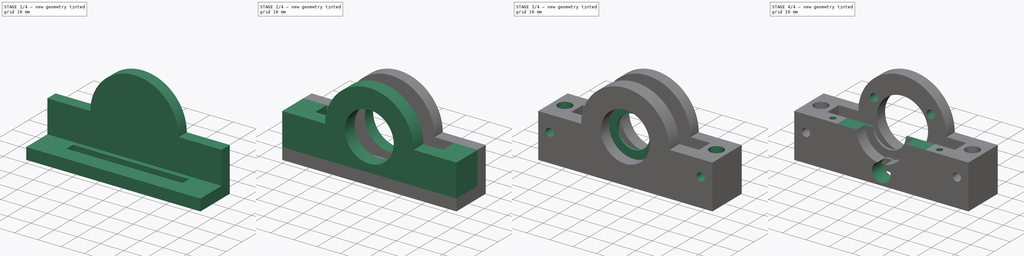
[diagram: build sequence overview — one tinted view per stage of 4, left to right]
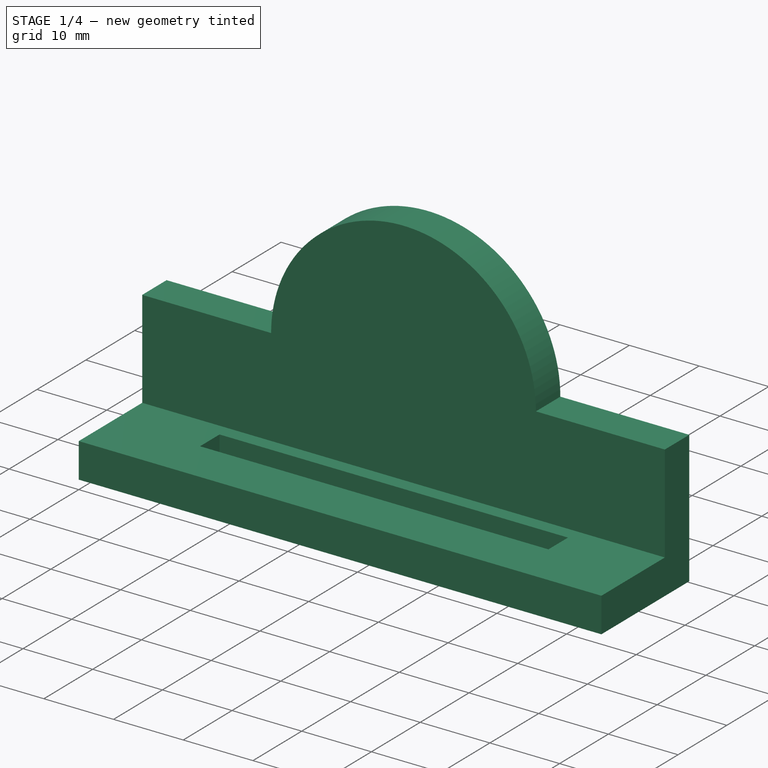
[diagram: stage 1 of 4 — iso view after this stage's code; geometry added in this stage tinted green]
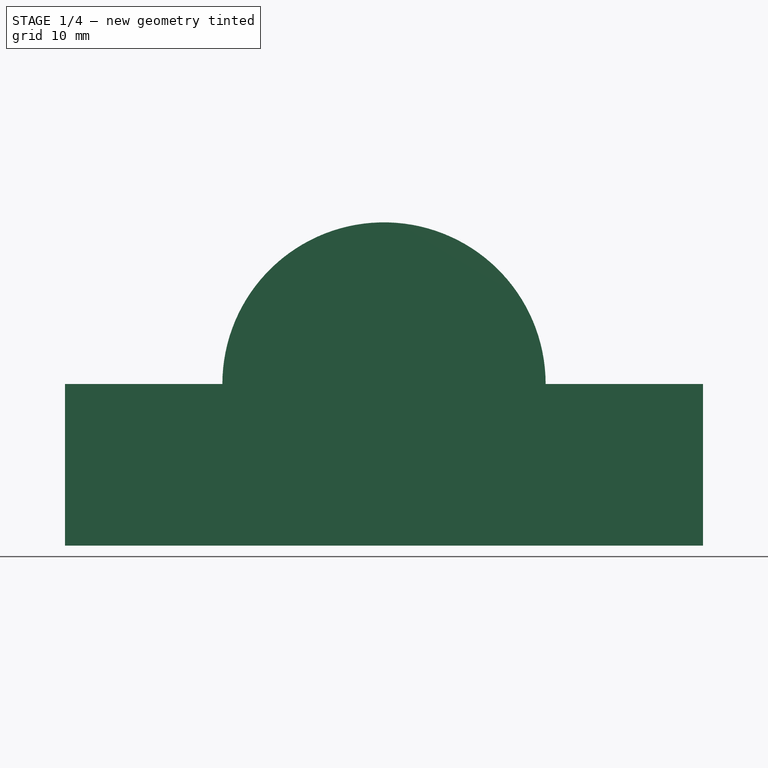
[diagram: stage 1 of 4 — front view after this stage's code; geometry added in this stage tinted green]
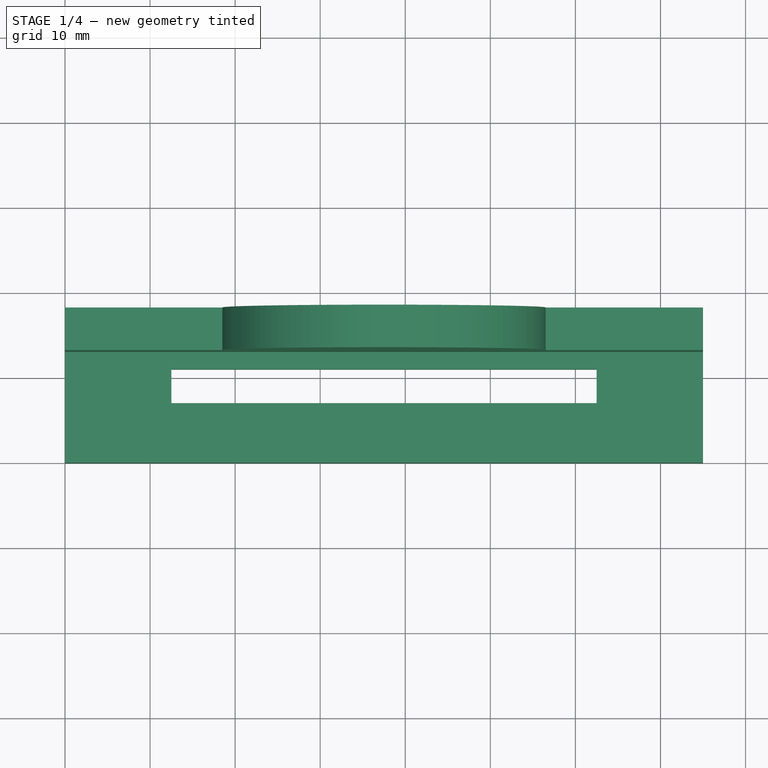
[diagram: stage 1 of 4 — top view after this stage's code; geometry added in this stage tinted green]
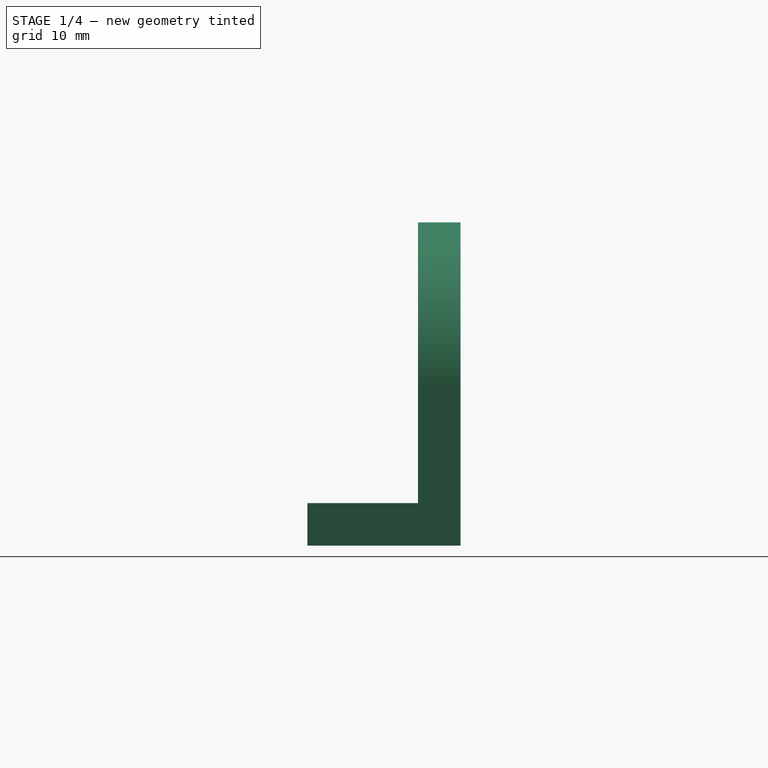
[diagram: stage 1 of 4 — right view after this stage's code; geometry added in this stage tinted green]
FCSTD DOCUMENT  (FreeCAD 0.17RUnknown)
Label: lpd3806-600bm-g5-24c_support_mobile
License: All rights reserved
LicenseURL: http://en.wikipedia.org/wiki/All_rights_reserved
objects: Sketcher::SketchObject×14, PartDesign::Pocket×8, PartDesign::Pad×5, PartDesign::Hole×1, PartDesign::Body×1
note: 43 computed .brp shape members not serialized (recipe doc carries the construction recipe); baked Part::Feature solids carry a one-line shape summary decoded from their .brp

FEATURE [Sketcher::SketchObject] Sketch
  MapMode = 5
  Support = -> [XY_Plane]
  sketch-geometry (4):
    g0: LineSegment StartX=0 StartY=0 StartZ=0 EndX=75 EndY=0 EndZ=0
    g1: LineSegment StartX=75 StartY=0 StartZ=0 EndX=75 EndY=18 EndZ=0
    g2: LineSegment StartX=75 StartY=18 StartZ=0 EndX=0 EndY=18 EndZ=0
    g3: LineSegment StartX=0 StartY=18 StartZ=0 EndX=0 EndY=0 EndZ=0
  constraints (11):
    c: Coincident(g0,g1)
    c: Coincident(g1,g2)
    c: Coincident(g2,g3)
    c: Coincident(g3,g0)
    c: Horizontal(g0)
    c: Horizontal(g2)
    c: Vertical(g1)
    c: Vertical(g3)
    c: Coincident(g0,g-1)
    c: DistanceX(g2,g2) = 75
    c: DistanceY(g3,g3) = 18
FEATURE [PartDesign::Pad] Pad
  Length = 5
  Length2 = 100
  Profile = -> Sketch
  Type = 0
FEATURE [Sketcher::SketchObject] Sketch001
  ExternalGeometry = -> [Pad]
  MapMode = 5
  Placement = pos=(0,0,5) rot=(0,0,1;0rad)
  Support = -> [Pad]
  sketch-geometry (6):
    g0: LineSegment StartX=12.5 StartY=11 StartZ=0 EndX=62.5 EndY=11 EndZ=0
    g1: LineSegment StartX=62.5 StartY=11 StartZ=0 EndX=62.5 EndY=7 EndZ=0
    g2: LineSegment StartX=62.5 StartY=7 StartZ=0 EndX=12.5 EndY=7 EndZ=0
    g3: LineSegment StartX=12.5 StartY=7 StartZ=0 EndX=12.5 EndY=11 EndZ=0
    g4: LineSegment [constr] StartX=12.5 StartY=7 StartZ=0 EndX=0 EndY=0 EndZ=0
    g5: LineSegment [constr] StartX=62.5 StartY=7 StartZ=0 EndX=75 EndY=0 EndZ=0
  constraints (16):
    c: Coincident(g0,g1)
    c: Coincident(g1,g2)
    c: Coincident(g2,g3)
    c: Coincident(g3,g0)
    c: Horizontal(g0)
    c: Horizontal(g2)
    c: Vertical(g1)
    c: Vertical(g3)
    c: DistanceY(g3,g3) = 4
    c: DistanceY(g-1,g2) = 7
    c: DistanceX(g0,g0) = 50
    c: Coincident(g4,g2)
    c: Coincident(g4,g-1)
    c: Coincident(g5,g1)
    c: Coincident(g5,g-3)
    c: Equal(g5,g4)
FEATURE [PartDesign::Pocket] Pocket
  BaseFeature = -> Pad
  Length = 5
  Length2 = 100
  Profile = -> Sketch001
  Type = 1
FEATURE [Sketcher::SketchObject] Sketch002
  ExternalGeometry = -> [Pocket]
  MapMode = 5
  Placement = pos=(0,0,5) rot=(0,0,1;0rad)
  Support = -> [Pocket]
  sketch-geometry (4):
    g0: LineSegment StartX=0 StartY=18 StartZ=0 EndX=75 EndY=18 EndZ=0
    g1: LineSegment StartX=75 StartY=18 StartZ=0 EndX=75 EndY=13 EndZ=0
    g2: LineSegment StartX=75 StartY=13 StartZ=0 EndX=0 EndY=13 EndZ=0
    g3: LineSegment StartX=0 StartY=13 StartZ=0 EndX=0 EndY=18 EndZ=0
  constraints (11):
    c: Coincident(g0,g1)
    c: Coincident(g1,g2)
    c: Coincident(g2,g3)
    c: Coincident(g3,g0)
    c: Horizontal(g0)
    c: Horizontal(g2)
    c: Vertical(g1)
    c: Vertical(g3)
    c: Coincident(g0,g-3)
    c: Coincident(g0,g-3)
    c: DistanceY(g3,g3) = 5
FEATURE [PartDesign::Pad] Pad001
  BaseFeature = -> Pocket
  Length = 38
  Length2 = 100
  Profile = -> Sketch002
  Type = 0
FEATURE [Sketcher::SketchObject] Sketch003
  ExternalGeometry = -> [Pad001]
  MapMode = 5
  Placement = pos=(0,13,0) rot=(1,0,0;1.5708rad)
  Support = -> [Pad001]
  sketch-geometry (8):
    g0: ArcOfCircle CenterX=37.5 CenterY=19 CenterZ=0 NormalX=0 NormalY=0 NormalZ=1 AngleXU=0 Radius=19 StartAngle=0 EndAngle=3.14159
    g1: LineSegment StartX=18.5 StartY=19 StartZ=0 EndX=-1.5 EndY=19 EndZ=0
    g2: LineSegment StartX=76.5 StartY=19 StartZ=0 EndX=56.5 EndY=19 EndZ=0
    g3: LineSegment StartX=-1.5 StartY=49 StartZ=0 EndX=76.5 EndY=49 EndZ=0
    g4: LineSegment StartX=76.5 StartY=49 StartZ=0 EndX=76.5 EndY=19 EndZ=0
    g5: LineSegment StartX=-1.5 StartY=19 StartZ=0 EndX=-1.5 EndY=49 EndZ=0
    g6: LineSegment [constr] StartX=-1.5 StartY=19 StartZ=0 EndX=0 EndY=5 EndZ=0
    g7: LineSegment [constr] StartX=75 StartY=5 StartZ=0 EndX=76.5 EndY=19 EndZ=0
  constraints (23):
    c: Radius(g0) = 19
    c: DistanceY(g0,g0) = 0
    c: Coincident(g0,g1)
    c: Coincident(g1,g5)
    c: Coincident(g5,g3)
    c: Horizontal(g1)
    c: Vertical(g5)
    c: Coincident(g3,g4)
    c: Coincident(g2,g4)
    c: Equal(g1,g2)
    c: Horizontal(g2)
    c: Vertical(g4)
    c: Horizontal(g3)
    c: Coincident(g0,g2)
    c: Coincident(g6,g1)
    c: Coincident(g6,g-5)
    c: Coincident(g7,g2)
    c: Equal(g7,g6)
    c: Coincident(g7,g-4)
    c: DistanceY(g0,g0) = 0
    c: DistanceY(g4,g4) = 30
    c: DistanceY(g-1,g0) = 19
    c: DistanceX(g1,g1) = 20
FEATURE [PartDesign::Pocket] Pocket001
  BaseFeature = -> Pad001
  Length = 5
  Length2 = 100
  Profile = -> Sketch003
  Type = 0
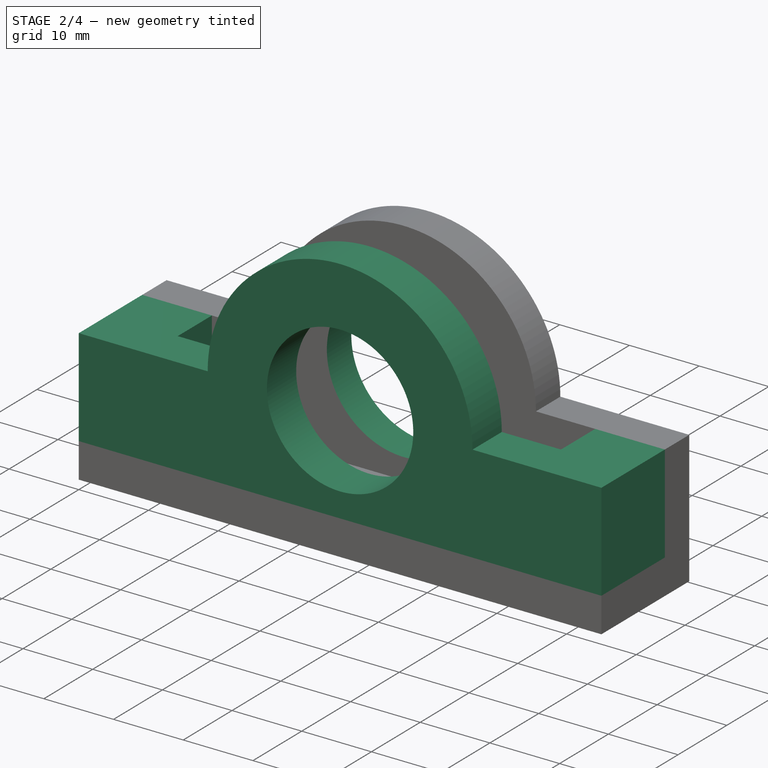
[diagram: stage 2 of 4 — iso view after this stage's code; geometry added in this stage tinted green]
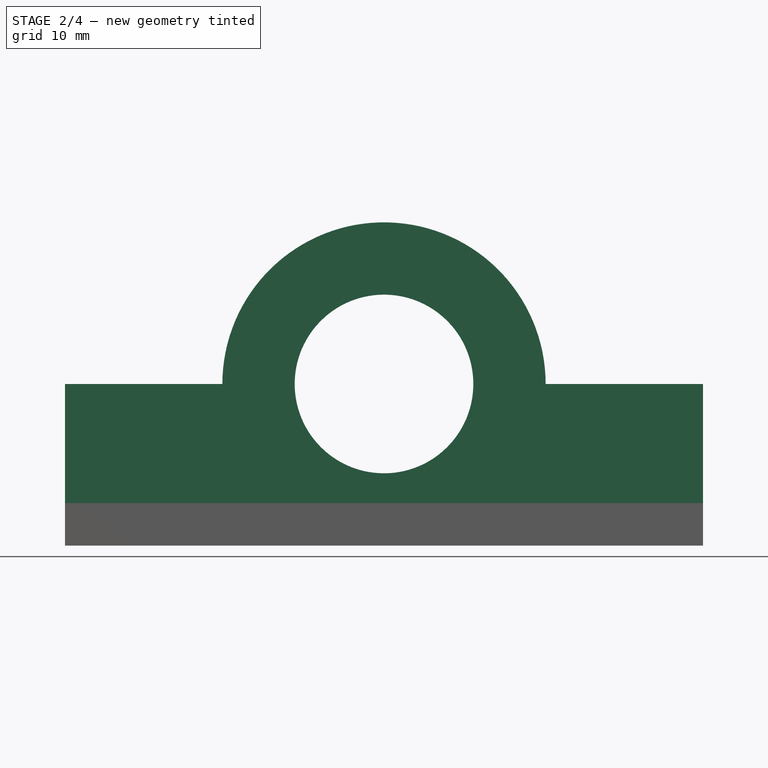
[diagram: stage 2 of 4 — front view after this stage's code; geometry added in this stage tinted green]
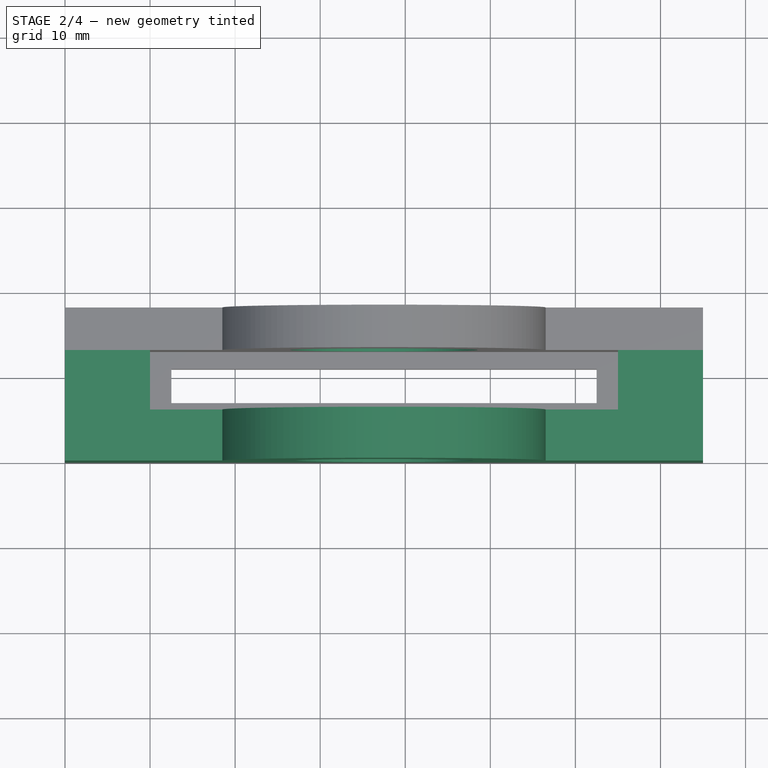
[diagram: stage 2 of 4 — top view after this stage's code; geometry added in this stage tinted green]
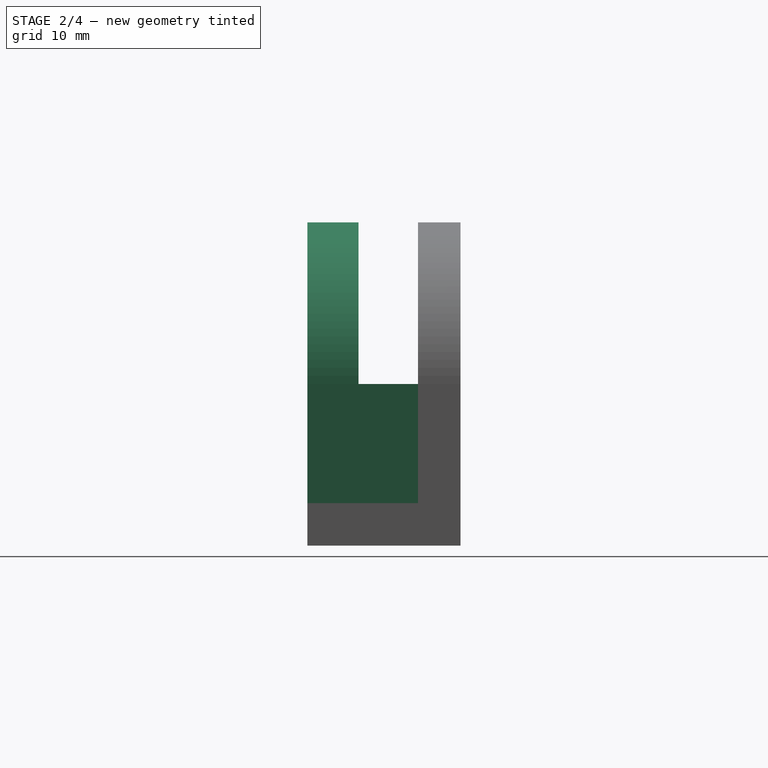
[diagram: stage 2 of 4 — right view after this stage's code; geometry added in this stage tinted green]
FEATURE [Sketcher::SketchObject] Sketch004
  ExternalGeometry = -> [Pocket001]
  MapMode = 3
  Placement = pos=(0,13,0) rot=(1,0,0;1.5708rad)
  sketch-geometry (1):
    g0: Circle CenterX=37.5 CenterY=19 CenterZ=0 NormalX=0 NormalY=0 NormalZ=1 AngleXU=0 Radius=11
  constraints (2):
    c: Radius(g0) = 11
    c: Coincident(g0,g-4)
FEATURE [PartDesign::Pocket] Pocket002
  BaseFeature = -> Pocket001
  Length = 5
  Length2 = 100
  Profile = -> Sketch004
  Type = 1
FEATURE [Sketcher::SketchObject] Sketch005
  ExternalGeometry = -> [Pocket002]
  MapMode = 5
  Placement = pos=(0,0,0) rot=(1,0,0;1.5708rad)
  Support = -> [Pocket002]
  sketch-geometry (7):
    g0: LineSegment StartX=56.5 StartY=19 StartZ=0 EndX=75 EndY=19 EndZ=0
    g1: LineSegment StartX=75 StartY=19 StartZ=0 EndX=75 EndY=0 EndZ=0
    g2: LineSegment StartX=75 StartY=0 StartZ=0 EndX=0 EndY=0 EndZ=0
    g3: LineSegment StartX=0 StartY=0 StartZ=0 EndX=0 EndY=19 EndZ=0
    g4: LineSegment StartX=0 StartY=19 StartZ=0 EndX=18.5 EndY=19 EndZ=0
    g5: ArcOfCircle CenterX=37.5 CenterY=19 CenterZ=0 NormalX=0 NormalY=0 NormalZ=1 AngleXU=0 Radius=19 StartAngle=0 EndAngle=3.14159
    g6: Circle CenterX=37.5 CenterY=19 CenterZ=0 NormalX=0 NormalY=0 NormalZ=1 AngleXU=0 Radius=10.5
  constraints (17):
    c: Coincident(g0,g-5)
    c: Horizontal(g0)
    c: Coincident(g0,g1)
    c: Coincident(g1,g-3)
    c: Coincident(g1,g2)
    c: Coincident(g2,g-1)
    c: Coincident(g2,g3)
    c: Coincident(g3,g-4)
    c: Coincident(g3,g4)
    c: Horizontal(g4)
    c: Coincident(g5,g4)
    c: Coincident(g5,g0)
    c: Radius(g5) = 19
    c: DistanceY(g0,g5) = 0
    c: Equal(g4,g0)
    c: Coincident(g6,g5)
    c: Radius(g6) = 10.5
FEATURE [PartDesign::Pad] Pad002
  BaseFeature = -> Pocket002
  Length = 6
  Length2 = 100
  Profile = -> Sketch005
  Reversed = true
  Type = 0
FEATURE [Sketcher::SketchObject] Sketch006
  ExternalGeometry = -> [Pad002]
  MapMode = 5
  Placement = pos=(0,0,5) rot=(0,0,1;0rad)
  Support = -> [Pad002]
  sketch-geometry (8):
    g0: LineSegment StartX=0 StartY=0 StartZ=0 EndX=10 EndY=0 EndZ=0
    g1: LineSegment StartX=10 StartY=0 StartZ=0 EndX=10 EndY=18 EndZ=0
    g2: LineSegment StartX=10 StartY=18 StartZ=0 EndX=0 EndY=18 EndZ=0
    g3: LineSegment StartX=0 StartY=18 StartZ=0 EndX=0 EndY=0 EndZ=0
    g4: LineSegment StartX=75 StartY=0 StartZ=0 EndX=65 EndY=0 EndZ=0
    g5: LineSegment StartX=65 StartY=0 StartZ=0 EndX=65 EndY=18 EndZ=0
    g6: LineSegment StartX=65 StartY=18 StartZ=0 EndX=75 EndY=18 EndZ=0
    g7: LineSegment StartX=75 StartY=18 StartZ=0 EndX=75 EndY=0 EndZ=0
  constraints (22):
    c: Coincident(g0,g1)
    c: Coincident(g1,g2)
    c: Coincident(g2,g3)
    c: Coincident(g3,g0)
    c: Horizontal(g0)
    c: Horizontal(g2)
    c: Vertical(g1)
    c: Vertical(g3)
    c: Coincident(g0,g-1)
    c: PointOnObject(g1,g-3)
    c: DistanceX(g2,g2) = 10
    c: Coincident(g4,g5)
    c: Coincident(g5,g6)
    c: Coincident(g6,g7)
    c: Coincident(g7,g4)
    c: Horizontal(g4)
    c: Horizontal(g6)
    c: Vertical(g5)
    c: Vertical(g7)
    c: Coincident(g4,g-4)
    c: Coincident(g-5,g6)
    c: Equal(g6,g2)
FEATURE [PartDesign::Pad] Pad003
  BaseFeature = -> Pad002
  Length = 14
  Length2 = 100
  Profile = -> Sketch006
  Type = 0
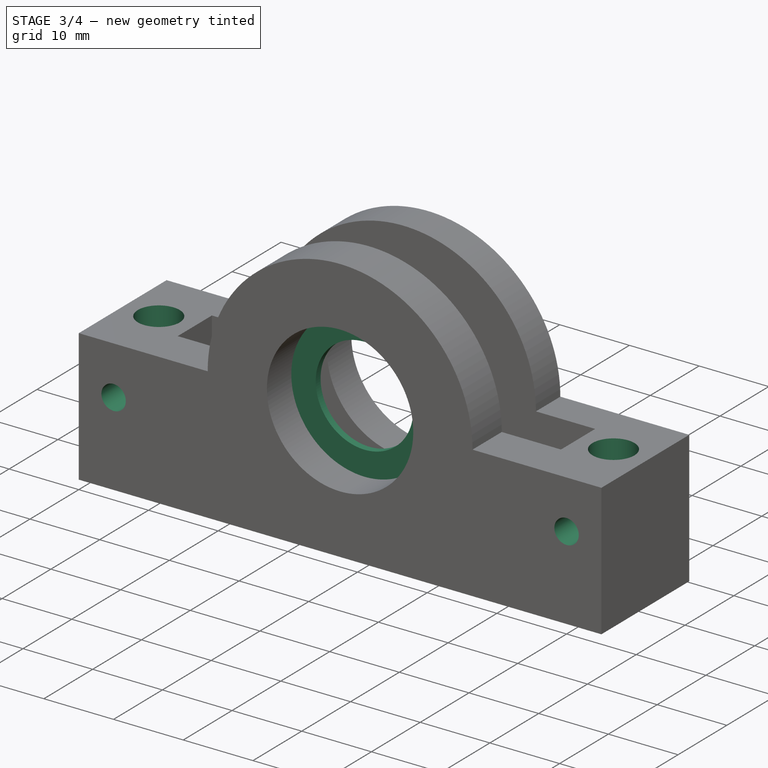
[diagram: stage 3 of 4 — iso view after this stage's code; geometry added in this stage tinted green]
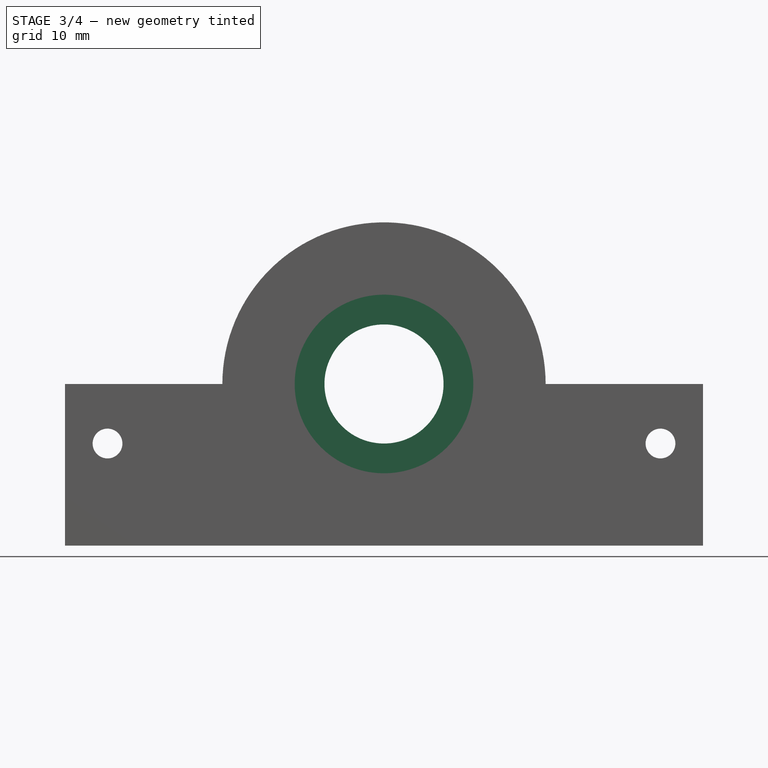
[diagram: stage 3 of 4 — front view after this stage's code; geometry added in this stage tinted green]
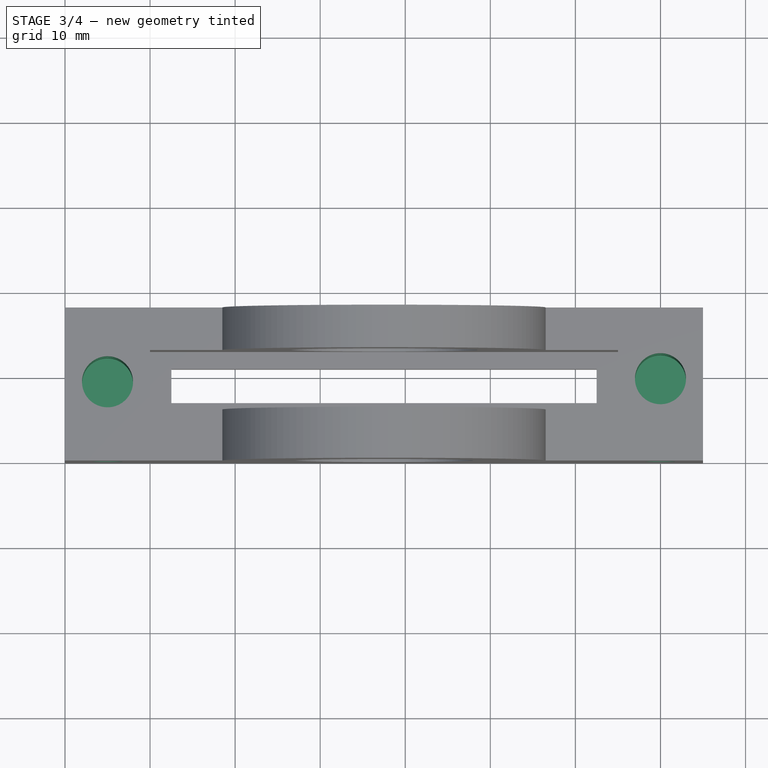
[diagram: stage 3 of 4 — top view after this stage's code; geometry added in this stage tinted green]
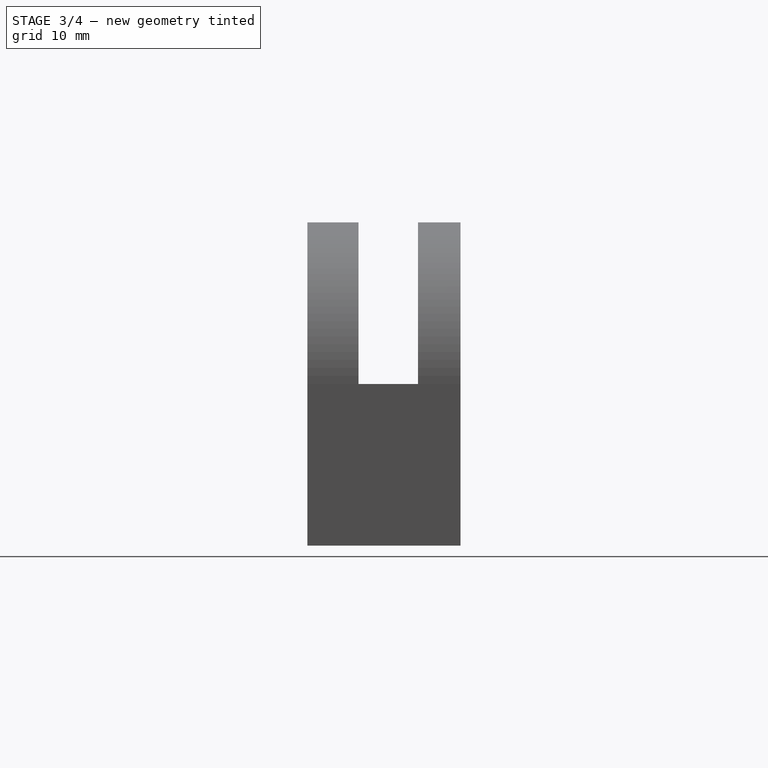
[diagram: stage 3 of 4 — right view after this stage's code; geometry added in this stage tinted green]
FEATURE [Sketcher::SketchObject] Sketch007
  ExternalGeometry = -> [Pad003]
  MapMode = 5
  Placement = pos=(0,0,19) rot=(0,0,1;0rad)
  Support = -> [Pad003]
  sketch-geometry (2):
    g0: Circle CenterX=5 CenterY=9.26064 CenterZ=0 NormalX=0 NormalY=0 NormalZ=1 AngleXU=0 Radius=3
    g1: Circle CenterX=70 CenterY=9.62281 CenterZ=0 NormalX=0 NormalY=0 NormalZ=1 AngleXU=0 Radius=3
  constraints (4):
    c: DistanceX(g-1,g0) = 5
    c: DistanceX(g1,g-3) = 5
    c: Radius(g1) = 3
    c: Equal(g1,g0)
FEATURE [PartDesign::Pocket] Pocket003
  BaseFeature = -> Pad003
  Length = 15
  Length2 = 100
  Profile = -> Sketch007
  Type = 0
FEATURE [Sketcher::SketchObject] Sketch008
  ExternalGeometry = -> [Pad003]
  MapMode = 5
  Placement = pos=(0,6,0) rot=(0,0.707107,0.707107;3.14159rad)
  Support = -> [Pad003]
  sketch-geometry (2):
    g0: Circle CenterX=-37.5 CenterY=19 CenterZ=0 NormalX=0 NormalY=0 NormalZ=1 AngleXU=0 Radius=7
    g1: Circle CenterX=-37.5 CenterY=19 CenterZ=0 NormalX=0 NormalY=0 NormalZ=1 AngleXU=0 Radius=16
  constraints (4):
    c: Coincident(g0,g-3)
    c: Coincident(g1,g0)
    c: Radius(g1) = 16
    c: Radius(g0) = 7
FEATURE [PartDesign::Pad] Pad004
  BaseFeature = -> Pocket003
  Length = 1
  Length2 = 100
  Profile = -> Sketch008
  Reversed = true
  Type = 0
FEATURE [Sketcher::SketchObject] Sketch009
  ExternalGeometry = -> [Pad004]
  MapMode = 5
  Placement = pos=(0,0,0) rot=(1,0,0;1.5708rad)
  Support = -> [Pad004]
  sketch-geometry (2):
    g0: Circle CenterX=5 CenterY=12 CenterZ=0 NormalX=0 NormalY=0 NormalZ=1 AngleXU=0 Radius=1.75
    g1: Circle CenterX=70 CenterY=12 CenterZ=0 NormalX=0 NormalY=0 NormalZ=1 AngleXU=0 Radius=1.75
  constraints (6):
    c: DistanceY(g-1,g0) = 12
    c: DistanceY(g-1,g1) = 12
    c: DistanceX(g-1,g0) = 5
    c: DistanceX(g1,g-3) = 5
    c: Radius(g1) = 1.75
    c: Equal(g1,g0)
FEATURE [PartDesign::Pocket] Pocket004
  BaseFeature = -> Pad004
  Length = 5
  Length2 = 100
  Profile = -> Sketch009
  Type = 1
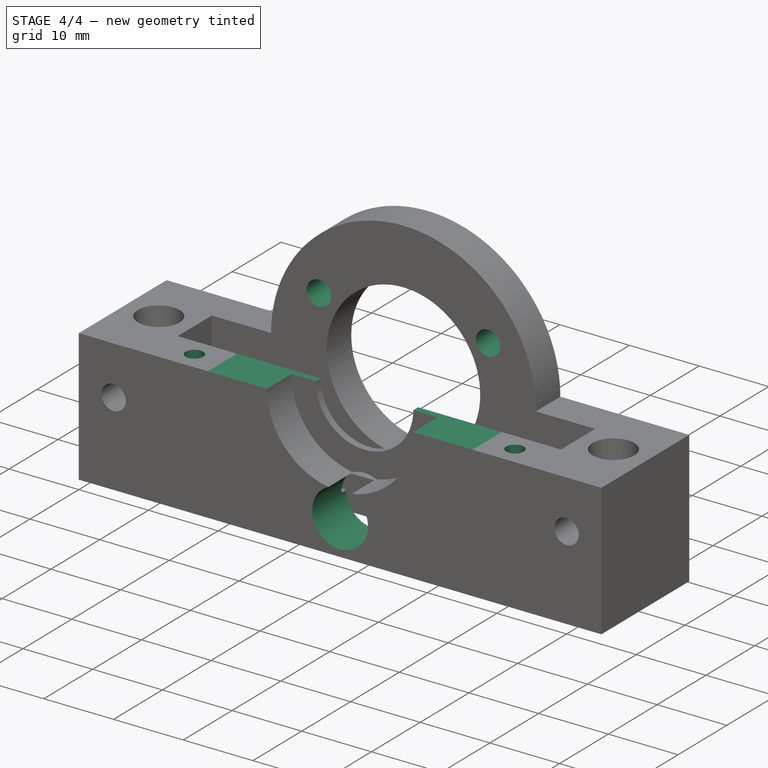
[diagram: stage 4 of 4 — iso view after this stage's code; geometry added in this stage tinted green]
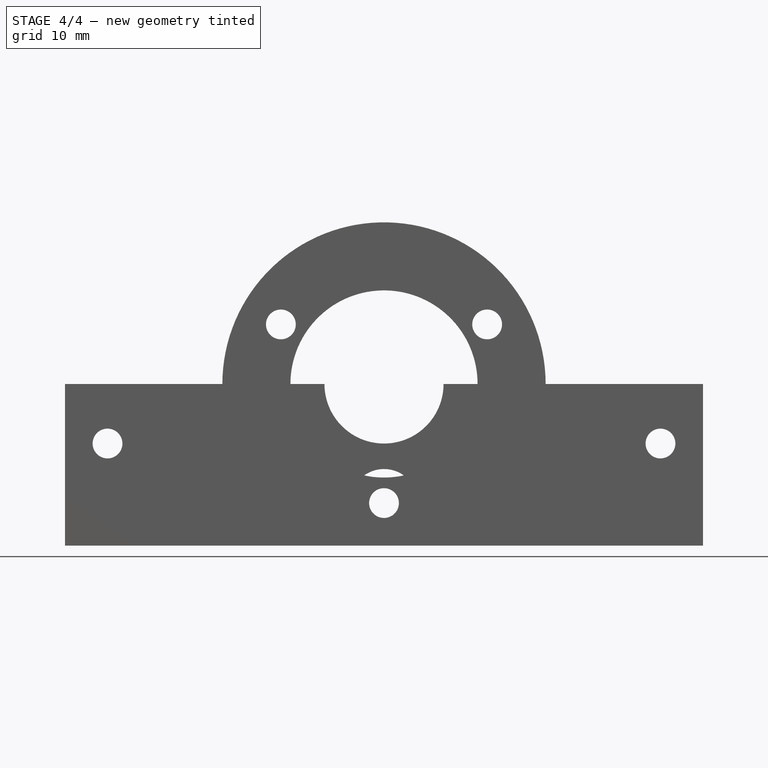
[diagram: stage 4 of 4 — front view after this stage's code; geometry added in this stage tinted green]
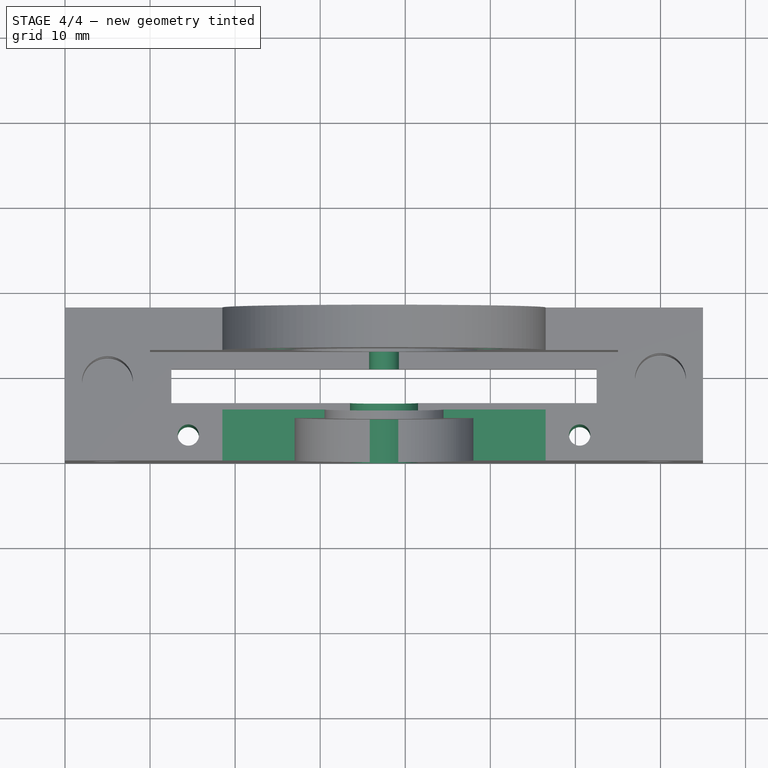
[diagram: stage 4 of 4 — top view after this stage's code; geometry added in this stage tinted green]
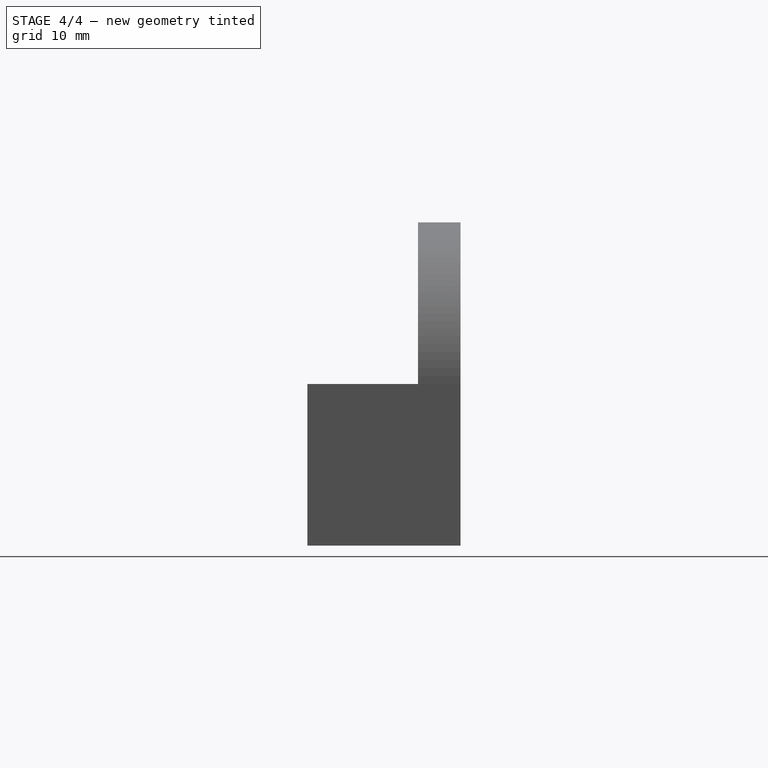
[diagram: stage 4 of 4 — right view after this stage's code; geometry added in this stage tinted green]
FEATURE [Sketcher::SketchObject] Sketch010
  ExternalGeometry = -> [Pocket004]
  MapMode = 5
  Placement = pos=(0,0,0) rot=(1,0,0;1.5708rad)
  Support = -> [Pocket004]
  sketch-geometry (7):
    g0: Circle [constr] CenterX=37.5 CenterY=19 CenterZ=0 NormalX=0 NormalY=0 NormalZ=1 AngleXU=0 Radius=14
    g1: LineSegment [constr] StartX=37.5 StartY=19 StartZ=0 EndX=37.5 EndY=5 EndZ=0
    g2: LineSegment [constr] StartX=37.5 StartY=19 StartZ=0 EndX=25.3756 EndY=26 EndZ=0
    g3: LineSegment [constr] StartX=37.5 StartY=19 StartZ=0 EndX=49.6244 EndY=26 EndZ=0
    g4: Circle CenterX=37.5 CenterY=5 CenterZ=0 NormalX=0 NormalY=0 NormalZ=1 AngleXU=0 Radius=4
    g5: Circle CenterX=25.3756 CenterY=26 CenterZ=0 NormalX=0 NormalY=0 NormalZ=1 AngleXU=0 Radius=4
    g6: Circle CenterX=49.6244 CenterY=26 CenterZ=0 NormalX=0 NormalY=0 NormalZ=1 AngleXU=0 Radius=4
  constraints (17):
    c: Coincident(g0,g-3)
    c: Radius(g0) = 14
    c: Coincident(g1,g0)
    c: Vertical(g1)
    c: Coincident(g2,g0)
    c: PointOnObject(g2,g0)
    c: Coincident(g3,g0)
    c: PointOnObject(g3,g0)
    c: Angle(g2,g1) = 2.0944
    c: Angle(g3,g2) = 2.0944
    c: PointOnObject(g1,g0)
    c: Coincident(g5,g2)
    c: Coincident(g6,g3)
    c: Radius(g6) = 4
    c: Equal(g6,g5)
    c: Equal(g6,g4)
    c: Coincident(g1,g4)
FEATURE [PartDesign::Pocket] Pocket005
  BaseFeature = -> Pocket004
  Length = 8
  Length2 = 100
  Profile = -> Sketch010
  Type = 0
FEATURE [Sketcher::SketchObject] Sketch011
  ExternalGeometry = -> [Pocket005]
  MapMode = 5
  Placement = pos=(0,0,0) rot=(1,0,0;1.5708rad)
  Support = -> [Pocket005]
  sketch-geometry (3):
    g0: Circle CenterX=25.3756 CenterY=26 CenterZ=0 NormalX=0 NormalY=0 NormalZ=1 AngleXU=0 Radius=1.75
    g1: Circle CenterX=37.5 CenterY=5 CenterZ=0 NormalX=0 NormalY=0 NormalZ=1 AngleXU=0 Radius=1.75
    g2: Circle CenterX=49.6244 CenterY=26 CenterZ=0 NormalX=0 NormalY=0 NormalZ=1 AngleXU=0 Radius=1.75
  constraints (6):
    c: Radius(g2) = 1.75
    c: Equal(g2,g0)
    c: Equal(g2,g1)
    c: Coincident(g-8,g2)
    c: Coincident(g1,g-7)
    c: Coincident(g-6,g0)
FEATURE [PartDesign::Pocket] Pocket006
  BaseFeature = -> Pocket005
  Length = 5
  Length2 = 100
  Profile = -> Sketch011
  Type = 1
FEATURE [Sketcher::SketchObject] Sketch012
  MapMode = 5
  Placement = pos=(0,0,0) rot=(1,0,0;1.5708rad)
  Support = -> [Pocket006]
  sketch-geometry (4):
    g0: LineSegment StartX=0 StartY=19 StartZ=0 EndX=100 EndY=19 EndZ=0
    g1: LineSegment StartX=100 StartY=19 StartZ=0 EndX=100 EndY=49 EndZ=0
    g2: LineSegment StartX=100 StartY=49 StartZ=0 EndX=0 EndY=49 EndZ=0
    g3: LineSegment StartX=0 StartY=49 StartZ=0 EndX=0 EndY=19 EndZ=0
  constraints (12):
    c: Coincident(g0,g1)
    c: Coincident(g1,g2)
    c: Coincident(g2,g3)
    c: Coincident(g3,g0)
    c: Horizontal(g0)
    c: Horizontal(g2)
    c: Vertical(g1)
    c: Vertical(g3)
    c: DistanceX(g2,g2) = 100
    c: DistanceY(g3,g3) = 30
    c: PointOnObject(g0,g-2)
    c: DistanceY(g-1,g0) = 19
FEATURE [PartDesign::Pocket] Pocket007
  BaseFeature = -> Pocket006
  Length = 6
  Length2 = 100
  Profile = -> Sketch012
  Type = 0
FEATURE [Sketcher::SketchObject] Sketch013
  ExternalGeometry = -> [Pocket007]
  MapMode = 5
  Placement = pos=(0,0,19) rot=(0,0,1;0rad)
  Support = -> [Pocket007]
  sketch-geometry (2):
    g0: Circle CenterX=14.5 CenterY=3 CenterZ=0 NormalX=0 NormalY=0 NormalZ=1 AngleXU=0 Radius=1.25
    g1: Circle CenterX=60.5 CenterY=3 CenterZ=0 NormalX=0 NormalY=0 NormalZ=1 AngleXU=0 Radius=1.25
  constraints (6):
    c: DistanceX(g0,g-3) = 4
    c: DistanceX(g-4,g1) = 4
    c: DistanceY(g-3,g0) = 3
    c: DistanceY(g-1,g1) = 3
    c: Radius(g0) = 1.25
    c: Equal(g0,g1)
FEATURE [PartDesign::Hole] Hole
  BaseFeature = -> Pocket007
  Depth = 25
  DepthType = 0
  Diameter = 2.5
  DrillPoint = 1
  DrillPointAngle = 118
  HoleCutCountersinkAngle = 90
  HoleCutDepth = 0
  HoleCutDiameter = 3
  HoleCutType = 0
  ModelActualThread = false
  Profile = -> Sketch013
  Tapered = false
  TaperedAngle = 90
  ThreadAngle = 60
  ThreadClass = 0
  ThreadCutOffInner = 0.0541266
  ThreadCutOffOuter = 0.108253
  ThreadDirection = 1
  ThreadFit = 0
  ThreadPitch = 0.5
  ThreadSize = 3
  ThreadType = 1
  Threaded = true
FEATURE [PartDesign::Body] Body
  Group = -> [Sketch,Pad,Sketch001,Pocket,Sketch002,Pad001,Sketch003,Pocket001,Sketch004,Pocket002,Sketch005,Pad002,Sketch006,Pad003,Sketch007,Pocket003,Sketch008,Pad004,Sketch009,Pocket004,Sketch010,Pocket005,Sketch011,Pocket006,Sketch012,Pocket007,Sketch013,Hole]
  Origin = -> Origin
  Tip = -> Hole
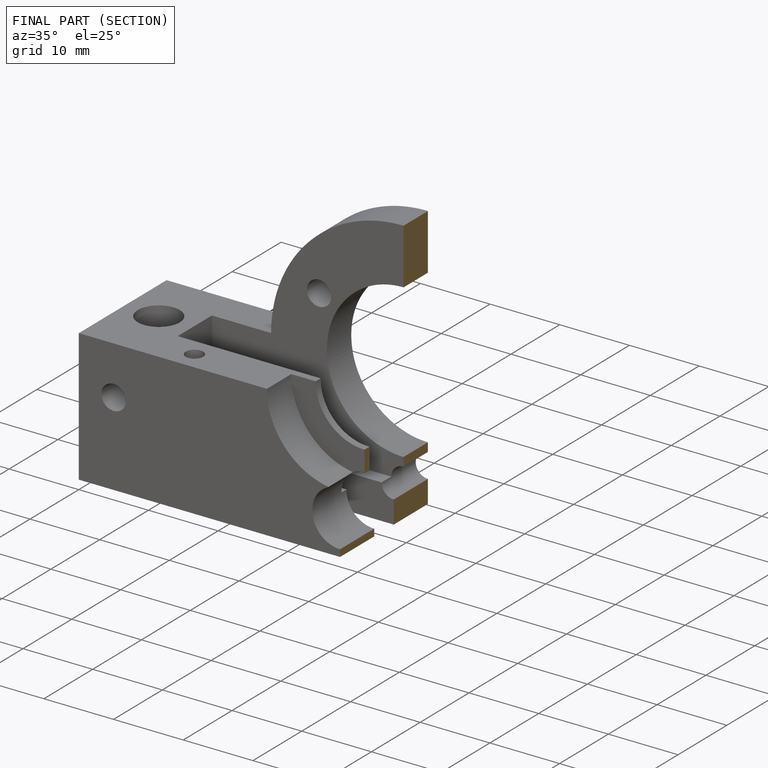
[diagram: finished part — half-section view (interior)]
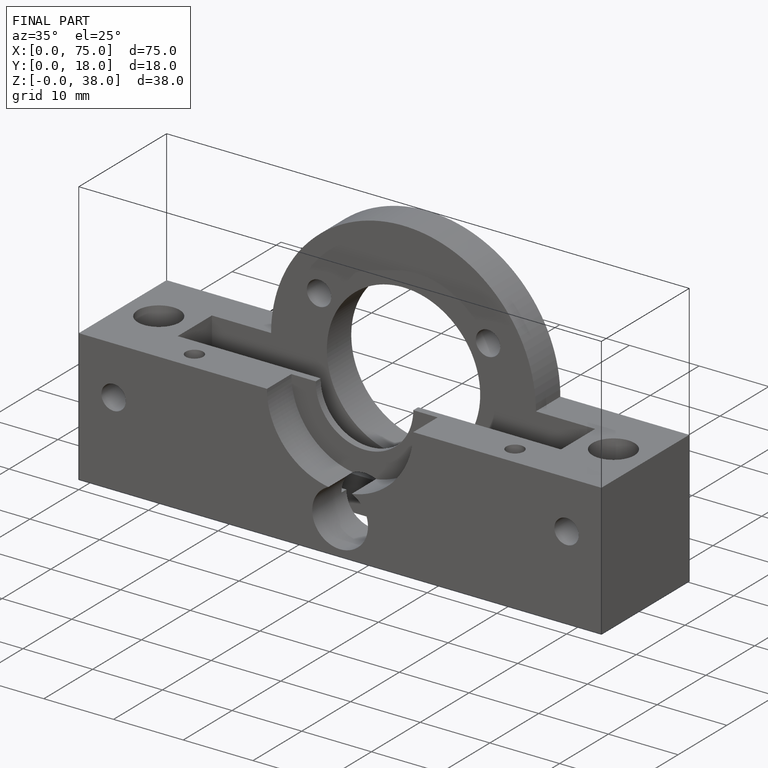
[diagram: finished part — iso view with bounding-box wireframe]
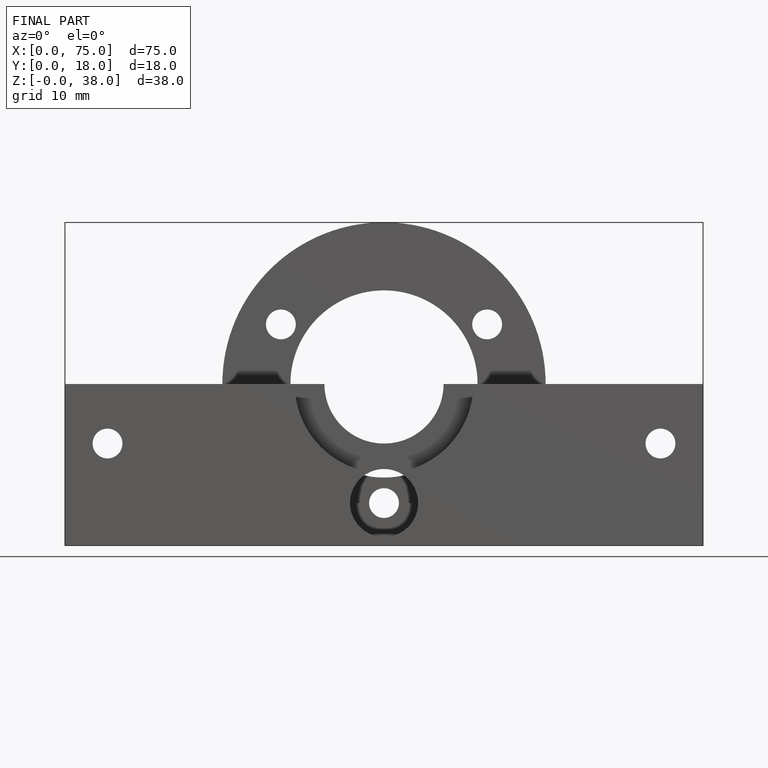
[diagram: finished part — front view with bounding-box wireframe]
